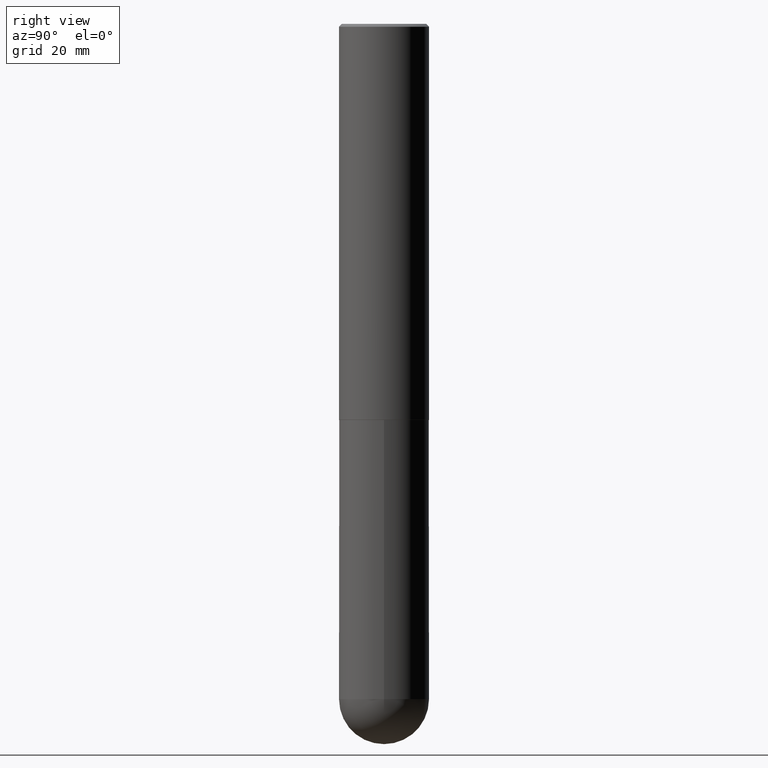
[diagram: clean part render]
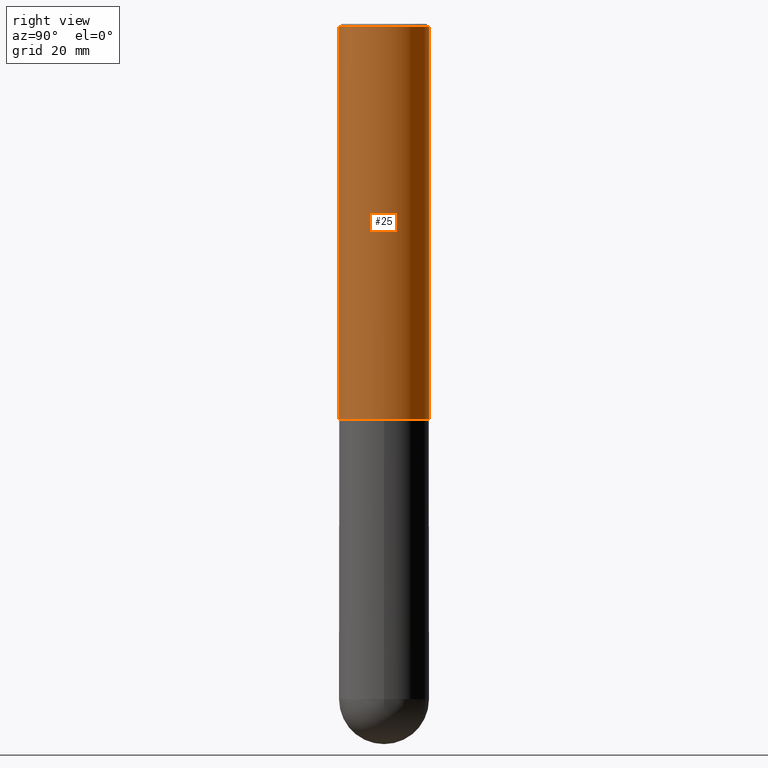
[diagram: same view with one face highlighted and labeled with its STEP entity id]
A machine part, right view. The second image highlights one B-rep face of the part: STEP entity #25.
In plain terms, the highlighted cylindrical surface (partial cylindrical patch) has radius 7.9375 mm, axis along (-0, 0, 1).
Its self-contained STEP definition (entity closure, byte-faithful):
#3 = EDGE_CURVE ( 'NONE', #7, #248, #384, .T. ) ;
#7 = VERTEX_POINT ( 'NONE', #350 ) ;
#24 = FACE_OUTER_BOUND ( 'NONE', #36, .T. ) ;
#25 = ADVANCED_FACE ( 'NONE', ( #24 ), #149, .T. ) ;
#36 = EDGE_LOOP ( 'NONE', ( #150, #262, #244, #145 ) ) ;
#61 = CARTESIAN_POINT ( 'NONE',  ( 2.182175836776958741E-15, 0.3124999999999999445, -0.02000000000000116268 ) ) ;
#106 = DIRECTION ( 'NONE',  ( -2.445061047772150115E-29, 3.492065272098710033E-15, 1.000000000000000000 ) ) ;
#113 = AXIS2_PLACEMENT_3D ( 'NONE', #374, #371, #403 ) ;
#116 = CARTESIAN_POINT ( 'NONE',  ( 0.000000000000000000, 0.000000000000000000, 0.000000000000000000 ) ) ;
#121 = VECTOR ( 'NONE', #337, 39.37007874015748143 ) ;
#128 = VECTOR ( 'NONE', #130, 39.37007874015748143 ) ;
#130 = DIRECTION ( 'NONE',  ( -2.445061047772150115E-29, 3.492065272098710033E-15, 1.000000000000000000 ) ) ;
#138 = DIRECTION ( 'NONE',  ( -2.445061047772150115E-29, 3.492065272098710033E-15, 1.000000000000000000 ) ) ;
#145 = ORIENTED_EDGE ( 'NONE', *, *, #397, .F. ) ;
#149 = CYLINDRICAL_SURFACE ( 'NONE', #249, 0.3125000000000002776 ) ;
#150 = ORIENTED_EDGE ( 'NONE', *, *, #3, .T. ) ;
#158 = EDGE_CURVE ( 'NONE', #248, #316, #387, .T. ) ;
#227 = CARTESIAN_POINT ( 'NONE',  ( -2.182175836776959925E-15, -0.3125000000000002776, 1.091270397530848019E-15 ) ) ;
#234 = EDGE_CURVE ( 'NONE', #368, #316, #356, .T. ) ;
#241 = CARTESIAN_POINT ( 'NONE',  ( 4.890122095544317046E-31, -6.984130544197443732E-17, -0.02000000000000006981 ) ) ;
#244 = ORIENTED_EDGE ( 'NONE', *, *, #234, .F. ) ;
#248 = VERTEX_POINT ( 'NONE', #398 ) ;
#249 = AXIS2_PLACEMENT_3D ( 'NONE', #116, #106, #348 ) ;
#262 = ORIENTED_EDGE ( 'NONE', *, *, #158, .T. ) ;
#263 = LINE ( 'NONE', #227, #121 ) ;
#272 = DIRECTION ( 'NONE',  ( -6.982962677686265133E-15, -1.000000000000000000, 3.496765431890256920E-15 ) ) ;
#288 = CARTESIAN_POINT ( 'NONE',  ( -2.143905624303602824E-15, -0.3125000000000000555, -0.01999999999999897693 ) ) ;
#295 = CARTESIAN_POINT ( 'NONE',  ( 2.220446049250314659E-15, 0.3125000000000002776, -1.091270397530848019E-15 ) ) ;
#316 = VERTEX_POINT ( 'NONE', #61 ) ;
#334 = AXIS2_PLACEMENT_3D ( 'NONE', #241, #138, #272 ) ;
#337 = DIRECTION ( 'NONE',  ( -2.445061047772150115E-29, 3.492065272098710033E-15, 1.000000000000000000 ) ) ;
#348 = DIRECTION ( 'NONE',  ( -6.982962677686265922E-15, -1.000000000000000000, 3.492065272098710428E-15 ) ) ;
#350 = CARTESIAN_POINT ( 'NONE',  ( -2.182175836776894449E-15, -0.3125000000000101030, -2.748999999999998334 ) ) ;
#356 = CIRCLE ( 'NONE', #334, 0.3125000000000000000 ) ;
#368 = VERTEX_POINT ( 'NONE', #288 ) ;
#371 = DIRECTION ( 'NONE',  ( -2.445061047772150115E-29, 3.492065272098710033E-15, 1.000000000000000000 ) ) ;
#374 = CARTESIAN_POINT ( 'NONE',  ( 6.721472820325638787E-29, -9.599687432999352568E-15, -2.748999999999999666 ) ) ;
#384 = CIRCLE ( 'NONE', #113, 0.3125000000000004996 ) ;
#387 = LINE ( 'NONE', #295, #128 ) ;
#397 = EDGE_CURVE ( 'NONE', #7, #368, #263, .T. ) ;
#398 = CARTESIAN_POINT ( 'NONE',  ( 2.220446049250349763E-15, 0.3124999999999908407, -2.749000000000000554 ) ) ;
#403 = DIRECTION ( 'NONE',  ( -6.982962677686265922E-15, -1.000000000000000000, 3.496765431890251398E-15 ) ) ;